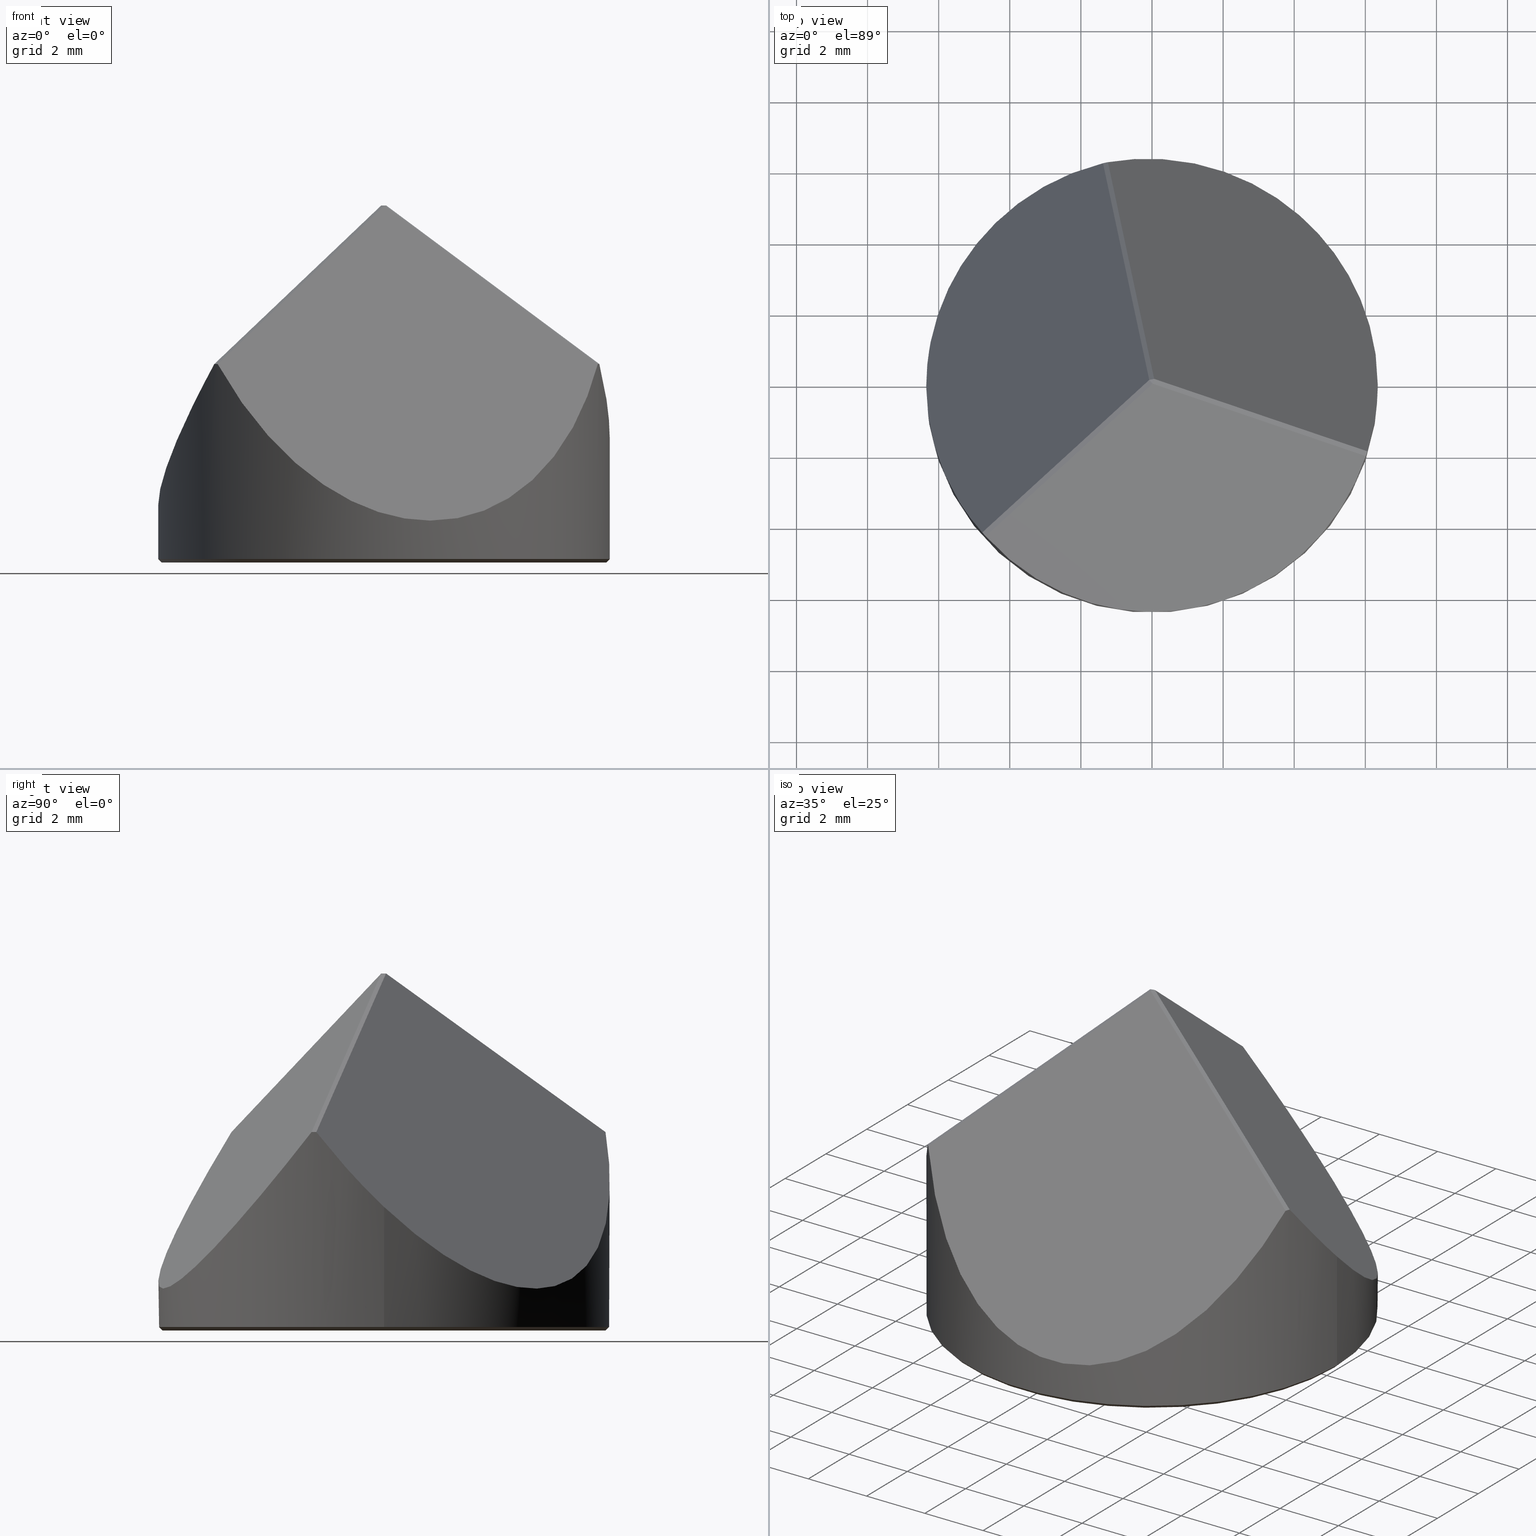
[diagram: canonical four-view strip — front | top / right | iso, engineering-drawing reading convention]
A machine part, canonical four-view strip (front | top / right | iso — engineering-drawing reading convention). The complete STEP part file that produces these views, byte-faithful:
ISO-10303-21;
HEADER;
FILE_DESCRIPTION (( 'STEP AP214' ),
    '1' );
FILE_NAME ('GP26-012-2.STEP',
    '2024-08-13T02:19:45',
    ( 'Windows User' ),
    ( 'P R C' ),
    'SwSTEP 2.0',
    'SolidWorks 2022',
    '' );
FILE_SCHEMA (( 'AUTOMOTIVE_DESIGN' ));
ENDSEC;

DATA;
#1 = LINE ( 'NONE', #305, #44 ) ;
#2 = ORIENTED_EDGE ( 'NONE', *, *, #184, .F. ) ;
#3 = VERTEX_POINT ( 'NONE', #367 ) ;
#4 = EDGE_CURVE ( 'NONE', #5, #20, #69, .T. ) ;
#5 = VERTEX_POINT ( 'NONE', #224 ) ;
#6 = UNCERTAINTY_MEASURE_WITH_UNIT (LENGTH_MEASURE( 1.000000000000000082E-05 ), #221, 'distance_accuracy_value', 'NONE');
#7 = PLANE ( 'NONE',  #146 ) ;
#8 = DIRECTION ( 'NONE',  ( 0.000000000000000000, 0.000000000000000000, 1.000000000000000000 ) ) ;
#9 = CARTESIAN_POINT ( 'NONE',  ( -4.773349735908086977, -4.187795637170729002, 4.913675856748671578 ) ) ;
#10 = CARTESIAN_POINT ( 'NONE',  ( 6.013412275601540458, -2.039944313858767178, 4.913675856748647597 ) ) ;
#11 =( BOUNDED_CURVE ( )  B_SPLINE_CURVE ( 3, ( #268, #129, #150, #10 ),
 .UNSPECIFIED., .F., .F. ) 
 B_SPLINE_CURVE_WITH_KNOTS ( ( 4, 4 ),
 ( 6.272049537170599542, 6.294321077188591573 ),
 .UNSPECIFIED. ) 
 CURVE ( )  GEOMETRIC_REPRESENTATION_ITEM ( )  RATIONAL_B_SPLINE_CURVE ( ( 1.000000000000000000, 0.9999586653025819283, 0.9999586653025819283, 1.000000000000000000 ) ) 
 REPRESENTATION_ITEM ( '' )  );
#12 = DIRECTION ( 'NONE',  ( -0.000000000000000000, -0.000000000000000000, -1.000000000000000000 ) ) ;
#13 = EDGE_CURVE ( 'NONE', #280, #3, #58, .T. ) ;
#14 = VERTEX_POINT ( 'NONE', #283 ) ;
#15 = ORIENTED_EDGE ( 'NONE', *, *, #40, .T. ) ;
#16 = FACE_OUTER_BOUND ( 'NONE', #89, .T. ) ;
#17 = SURFACE_STYLE_USAGE ( .BOTH. , #191 ) ;
#18 = DIRECTION ( 'NONE',  ( -1.000000000000000000, 0.000000000000000000, 0.000000000000000000 ) ) ;
#19 = FILL_AREA_STYLE_COLOUR ( '', #75 ) ;
#20 = VERTEX_POINT ( 'NONE', #174 ) ;
#21 = VECTOR ( 'NONE', #354, 1000.000000000000000 ) ;
#22 = LINE ( 'NONE', #194, #233 ) ;
#23 = EDGE_LOOP ( 'NONE', ( #276, #195, #301, #271 ) ) ;
#24 = EDGE_CURVE ( 'NONE', #14, #304, #269, .T. ) ;
#25 = DIRECTION ( 'NONE',  ( -1.000000000000000000, 0.000000000000000000, 0.000000000000000000 ) ) ;
#26 = ORIENTED_EDGE ( 'NONE', *, *, #112, .F. ) ;
#27 = DIRECTION ( 'NONE',  ( 0.1683570817218968951, -0.7989509119468813925, 0.5773502691896257311 ) ) ;
#28 = ORIENTED_EDGE ( 'NONE', *, *, #13, .F. ) ;
#29 = DIRECTION ( 'NONE',  ( 0.7760903269836917362, -0.2536739462952649071, -0.5773502691896258421 ) ) ;
#30 = ORIENTED_EDGE ( 'NONE', *, *, #131, .F. ) ;
#31 = MECHANICAL_DESIGN_GEOMETRIC_PRESENTATION_REPRESENTATION (  '', ( #365 ), #252 ) ;
#32 = DIRECTION ( 'NONE',  ( -0.1683570817218965621, 0.7989509119468813925, -0.5773502691896256200 ) ) ;
#33 = LINE ( 'NONE', #176, #101 ) ;
#34 = LINE ( 'NONE', #152, #141 ) ;
#35 = VECTOR ( 'NONE', #170, 1000.000000000000000 ) ;
#36 = AXIS2_PLACEMENT_3D ( 'NONE', #55, #27, #84 ) ;
#37 = CARTESIAN_POINT ( 'NONE',  ( 0.000000000000000000, 0.000000000000000000, 0.000000000000000000 ) ) ;
#38 = CARTESIAN_POINT ( 'NONE',  ( -0.9832233233696141550, 4.323026608033536000, 6.269017013437424346 ) ) ;
#39 = LINE ( 'NONE', #267, #74 ) ;
#40 = EDGE_CURVE ( 'NONE', #20, #166, #120, .T. ) ;
#41 = CARTESIAN_POINT ( 'NONE',  ( 6.013412275601540458, -2.039944313858767178, 4.913675856748647597 ) ) ;
#42 = ORIENTED_EDGE ( 'NONE', *, *, #214, .F. ) ;
#43 = AXIS2_PLACEMENT_3D ( 'NONE', #361, #111, #105 ) ;
#44 = VECTOR ( 'NONE', #144, 1000.000000000000000 ) ;
#45 = DIRECTION ( 'NONE',  ( 0.6077332452617950631, 0.5452769656516159857, 0.5773502691896258421 ) ) ;
#46 = FACE_OUTER_BOUND ( 'NONE', #148, .T. ) ;
#47 = PRODUCT_RELATED_PRODUCT_CATEGORY ( 'part', '', ( #190 ) ) ;
#48 = CARTESIAN_POINT ( 'NONE',  ( -4.678904995037518333, -4.293058122994954040, 4.913675856748721316 ) ) ;
#49 = DIRECTION ( 'NONE',  ( 0.5968741507397000712, 0.000000000000000000, 0.8023348728422327047 ) ) ;
#50 = EDGE_LOOP ( 'NONE', ( #73, #145, #137 ) ) ;
#51 = EDGE_CURVE ( 'NONE', #143, #280, #242, .T. ) ;
#52 = CARTESIAN_POINT ( 'NONE',  ( 0.000000000000000000, 0.000000000000000000, -0.5700000000000019496 ) ) ;
#53 = CARTESIAN_POINT ( 'NONE',  ( -6.350000000000001421, 3.103686174823302668, -0.4094046865415499337 ) ) ;
#54 = ADVANCED_FACE ( 'NONE', ( #204 ), #95, .F. ) ;
#55 = CARTESIAN_POINT ( 'NONE',  ( 0.9224499988434377018, -4.377554304598697321, 3.163376020178191528 ) ) ;
#56 = ORIENTED_EDGE ( 'NONE', *, *, #315, .F. ) ;
#57 = CARTESIAN_POINT ( 'NONE',  ( -3.252239202108308636, -3.013009679648218420, 6.269017013437423458 ) ) ;
#58 = LINE ( 'NONE', #229, #35 ) ;
#59 = ORIENTED_EDGE ( 'NONE', *, *, #121, .F. ) ;
#60 = APPLICATION_CONTEXT ( 'automotive_design' ) ;
#61 = FACE_OUTER_BOUND ( 'NONE', #360, .T. ) ;
#62 = CARTESIAN_POINT ( 'NONE',  ( 6.349999999999999645, -0.6476245182123647748, 3.417607508736823618 ) ) ;
#63 = DIRECTION ( 'NONE',  ( 1.000000000000000000, 0.000000000000000000, 0.000000000000000000 ) ) ;
#64 = CARTESIAN_POINT ( 'NONE',  ( 3.329848234806675578, 2.987642285018690114, 3.163376020178194636 ) ) ;
#65 = DIRECTION ( 'NONE',  ( -1.000000000000000000, 0.000000000000000000, 0.000000000000000000 ) ) ;
#66 = DIRECTION ( 'NONE',  ( 0.000000000000000000, 0.000000000000000000, -1.000000000000000000 ) ) ;
#67 = DIRECTION ( 'NONE',  ( 1.000000000000000000, 0.000000000000000000, 0.000000000000000000 ) ) ;
#68 = DIRECTION ( 'NONE',  ( 1.000000000000000000, 0.000000000000000000, 0.000000000000000000 ) ) ;
#69 =( BOUNDED_CURVE ( )  B_SPLINE_CURVE ( 3, ( #311, #117, #62, #198 ),
 .UNSPECIFIED., .F., .F. ) 
 B_SPLINE_CURVE_WITH_KNOTS ( ( 4, 4 ),
 ( 5.247123525991987059, 5.551902276905597233 ),
 .UNSPECIFIED. ) 
 CURVE ( )  GEOMETRIC_REPRESENTATION_ITEM ( )  RATIONAL_B_SPLINE_CURVE ( ( 1.000000000000000000, 0.9922741279781082113, 0.9922741279781082113, 1.000000000000000000 ) ) 
 REPRESENTATION_ITEM ( '' )  );
#70 = ADVANCED_FACE ( 'NONE', ( #100 ), #295, .T. ) ;
#71 = CARTESIAN_POINT ( 'NONE',  ( -1.020309708082639988, -8.280476711917241772, -1.671065411290767244 ) ) ;
#72 = SURFACE_STYLE_FILL_AREA ( #80 ) ;
#73 = ORIENTED_EDGE ( 'NONE', *, *, #196, .T. ) ;
#74 = VECTOR ( 'NONE', #206, 1000.000000000000114 ) ;
#75 = COLOUR_RGB ( '',1.000000000000000000, 1.000000000000000000, 1.000000000000000000 ) ;
#76 = PRODUCT_DEFINITION_CONTEXT ( 'detailed design', #60, 'design' ) ;
#77 = ORIENTED_EDGE ( 'NONE', *, *, #159, .F. ) ;
#78 = LINE ( 'NONE', #155, #326 ) ;
#79 = PRODUCT_DEFINITION_SHAPE ( 'NONE', 'NONE',  #319 ) ;
#80 = FILL_AREA_STYLE ('',( #359 ) ) ;
#81 =( NAMED_UNIT ( * ) PLANE_ANGLE_UNIT ( ) SI_UNIT ( $, .RADIAN. ) );
#82 = ORIENTED_EDGE ( 'NONE', *, *, #347, .F. ) ;
#83 = EDGE_CURVE ( 'NONE', #3, #253, #203, .T. ) ;
#84 = DIRECTION ( 'NONE',  ( 0.000000000000000000, -0.5857106597838060980, -0.8105202175242876006 ) ) ;
#85 = ORIENTED_EDGE ( 'NONE', *, *, #4, .F. ) ;
#86 = SURFACE_STYLE_USAGE ( .BOTH. , #339 ) ;
#87 = VERTEX_POINT ( 'NONE', #236 ) ;
#88 = CARTESIAN_POINT ( 'NONE',  ( -0.07760903269836687268, 0.02536739462952296645, 9.374658006696655832 ) ) ;
#89 = EDGE_LOOP ( 'NONE', ( #77, #82, #30, #325 ) ) ;
#90 = DIRECTION ( 'NONE',  ( -0.6077332452617949521, -0.5452769656516159857, -0.5773502691896258421 ) ) ;
#91 = VERTEX_POINT ( 'NONE', #316 ) ;
#92 = ORIENTED_EDGE ( 'NONE', *, *, #184, .T. ) ;
#93 = UNCERTAINTY_MEASURE_WITH_UNIT (LENGTH_MEASURE( 1.000000000000000082E-05 ), #218, 'distance_accuracy_value', 'NONE');
#94 = CONICAL_SURFACE ( 'NONE', #106, 6.250000000000000888, 0.7853981633974526089 ) ;
#95 = PLANE ( 'NONE',  #135 ) ;
#96 = VECTOR ( 'NONE', #45, 999.9999999999998863 ) ;
#97 = ADVANCED_FACE ( 'NONE', ( #208 ), #340, .T. ) ;
#98 = CARTESIAN_POINT ( 'NONE',  ( 0.000000000000000000, 0.000000000000000000, -0.6699999999999995959 ) ) ;
#99 = CARTESIAN_POINT ( 'NONE',  ( -6.349999999999999645, 0.000000000000000000, 0.9542810377841138836 ) ) ;
#100 = FACE_OUTER_BOUND ( 'NONE', #335, .T. ) ;
#101 = VECTOR ( 'NONE', #32, 1000.000000000000000 ) ;
#102 = VECTOR ( 'NONE', #284, 1000.000000000000114 ) ;
#103 = DIRECTION ( 'NONE',  ( 0.1683570817218965066, -0.7989509119468813925, 0.5773502691896256200 ) ) ;
#104 = CYLINDRICAL_SURFACE ( 'NONE', #265, 6.349999999999999645 ) ;
#105 = DIRECTION ( 'NONE',  ( 0.7760903269836917362, -0.2536739462952650181, -0.5773502691896257311 ) ) ;
#106 = AXIS2_PLACEMENT_3D ( 'NONE', #352, #151, #68 ) ;
#107 = VECTOR ( 'NONE', #300, 1000.000000000000000 ) ;
#108 = ADVANCED_BREP_SHAPE_REPRESENTATION ( 'GP26-012-2', ( #197, #281 ), #293 ) ;
#109 = PRODUCT_DEFINITION_FORMATION_WITH_SPECIFIED_SOURCE ( '�κ�', '', #190, .NOT_KNOWN. ) ;
#110 = ORIENTED_EDGE ( 'NONE', *, *, #327, .F. ) ;
#111 = DIRECTION ( 'NONE',  ( -0.5487787330234554783, 0.1793745676357279273, -0.8164965809277260345 ) ) ;
#112 = EDGE_CURVE ( 'NONE', #216, #333, #205, .T. ) ;
#113 = LINE ( 'NONE', #279, #102 ) ;
#114 = CIRCLE ( 'NONE', #181, 6.349999999999999645 ) ;
#115 = ORIENTED_EDGE ( 'NONE', *, *, #138, .T. ) ;
#116 = FACE_OUTER_BOUND ( 'NONE', #50, .T. ) ;
#117 = CARTESIAN_POINT ( 'NONE',  ( 6.251690436881996327, -1.287743840205808121, 4.125649633596847110 ) ) ;
#118 = ORIENTED_EDGE ( 'NONE', *, *, #159, .T. ) ;
#119 = PLANE ( 'NONE',  #227 ) ;
#120 =( BOUNDED_CURVE ( )  B_SPLINE_CURVE ( 3, ( #177, #127, #128, #351 ),
 .UNSPECIFIED., .F., .T. ) 
 B_SPLINE_CURVE_WITH_KNOTS ( ( 4, 4 ),
 ( 5.551902276905597233, 7.319247088367185405 ),
 .UNSPECIFIED. ) 
 CURVE ( )  GEOMETRIC_REPRESENTATION_ITEM ( )  RATIONAL_B_SPLINE_CURVE ( ( 1.000000000000000000, 0.7562109254666702363, 0.7562109254666702363, 1.000000000000000000 ) ) 
 REPRESENTATION_ITEM ( '' )  );
#121 = EDGE_CURVE ( 'NONE', #309, #14, #33, .T. ) ;
#122 = CARTESIAN_POINT ( 'NONE',  ( -6.349999999999999645, 0.000000000000000000, 0.9542810377841138836 ) ) ;
#123 = AXIS2_PLACEMENT_3D ( 'NONE', #154, #202, #65 ) ;
#124 = CARTESIAN_POINT ( 'NONE',  ( 0.000000000000000000, 0.000000000000000000, -0.6699999999999999289 ) ) ;
#125 = MECHANICAL_DESIGN_GEOMETRIC_PRESENTATION_REPRESENTATION (  '', ( #264 ), #210 ) ;
#126 = SHAPE_DEFINITION_REPRESENTATION ( #79, #108 ) ;
#127 = CARTESIAN_POINT ( 'NONE',  ( 6.349999999999997868, 4.327731766911852240, -1.281354842135801420 ) ) ;
#128 = CARTESIAN_POINT ( 'NONE',  ( 3.004345022847742186, 7.072882950397804791, -0.3522861678321642098 ) ) ;
#129 = CARTESIAN_POINT ( 'NONE',  ( 6.043203299936917183, -1.950491292360709839, 4.913304656743204823 ) ) ;
#130 = EDGE_LOOP ( 'NONE', ( #330, #92, #248, #42, #362, #341 ) ) ;
#131 = EDGE_CURVE ( 'NONE', #87, #91, #39, .T. ) ;
#132 = CARTESIAN_POINT ( 'NONE',  ( -3.346683942978864401, -2.907747193824007592, 6.269017013437424346 ) ) ;
#133 = EDGE_LOOP ( 'NONE', ( #244, #222, #157, #28 ) ) ;
#134 = LINE ( 'NONE', #136, #21 ) ;
#135 = AXIS2_PLACEMENT_3D ( 'NONE', #38, #317, #289 ) ;
#136 = CARTESIAN_POINT ( 'NONE',  ( 6.349999999999999645, 7.776507174585692163E-16, 5.000000000000000000 ) ) ;
#137 = ORIENTED_EDGE ( 'NONE', *, *, #251, .T. ) ;
#138 = EDGE_CURVE ( 'NONE', #280, #143, #299, .T. ) ;
#139 = LINE ( 'NONE', #247, #168 ) ;
#140 = ORIENTED_EDGE ( 'NONE', *, *, #344, .F. ) ;
#141 = VECTOR ( 'NONE', #298, 1000.000000000000000 ) ;
#142 =( LENGTH_UNIT ( ) NAMED_UNIT ( * ) SI_UNIT ( .MILLI., .METRE. ) );
#143 = VERTEX_POINT ( 'NONE', #234 ) ;
#144 = DIRECTION ( 'NONE',  ( -0.6678251671697826852, 0.7443181753085515995, 1.225326322964467107E-14 ) ) ;
#145 = ORIENTED_EDGE ( 'NONE', *, *, #315, .T. ) ;
#146 = AXIS2_PLACEMENT_3D ( 'NONE', #64, #292, #350 ) ;
#147 = CARTESIAN_POINT ( 'NONE',  ( -0.07760903269836687268, 0.02536739462952296645, 9.374658006696655832 ) ) ;
#148 = EDGE_LOOP ( 'NONE', ( #163, #246, #26, #56 ) ) ;
#149 = ADVANCED_FACE ( 'NONE', ( #178 ), #94, .T. ) ;
#150 = CARTESIAN_POINT ( 'NONE',  ( 6.028556822411204941, -1.995300740465629552, 4.913304656743205712 ) ) ;
#151 = DIRECTION ( 'NONE',  ( 0.000000000000000000, 0.000000000000000000, 1.000000000000000000 ) ) ;
#152 = CARTESIAN_POINT ( 'NONE',  ( -6.250000000000000888, 7.654042494670958593E-16, -0.6699999999999995959 ) ) ;
#153 = AXIS2_PLACEMENT_3D ( 'NONE', #219, #297, #49 ) ;
#154 = CARTESIAN_POINT ( 'NONE',  ( 0.000000000000000000, 0.000000000000000000, -0.6699999999999999289 ) ) ;
#155 = CARTESIAN_POINT ( 'NONE',  ( 4.191524909123934606, -1.444439716145166752, 6.269017013437423458 ) ) ;
#156 = CLOSED_SHELL ( 'NONE', ( #149, #263, #277, #223, #323, #179, #70, #97, #54, #212, #336, #302 ) ) ;
#157 = ORIENTED_EDGE ( 'NONE', *, *, #83, .F. ) ;
#158 = LINE ( 'NONE', #132, #96 ) ;
#159 = EDGE_CURVE ( 'NONE', #5, #306, #11, .T. ) ;
#160 = DIRECTION ( 'NONE',  ( -0.000000000000000000, -0.000000000000000000, -1.000000000000000000 ) ) ;
#161 = PRESENTATION_STYLE_ASSIGNMENT (( #17 ) ) ;
#162 = CARTESIAN_POINT ( 'NONE',  ( 0.000000000000000000, 0.000000000000000000, 5.000000000000000000 ) ) ;
#163 = ORIENTED_EDGE ( 'NONE', *, *, #356, .T. ) ;
#164 = EDGE_LOOP ( 'NONE', ( #346, #307, #358, #15 ) ) ;
#165 = CARTESIAN_POINT ( 'NONE',  ( -1.332426640923738637, 6.208813224159674071, 4.913304656743204823 ) ) ;
#166 = VERTEX_POINT ( 'NONE', #237 ) ;
#167 = COLOUR_RGB ( '',1.000000000000000000, 1.000000000000000000, 1.000000000000000000 ) ;
#168 = VECTOR ( 'NONE', #103, 1000.000000000000000 ) ;
#169 = CARTESIAN_POINT ( 'NONE',  ( -4.773349735908086977, -4.187795637170729002, 4.913675856748671578 ) ) ;
#170 = DIRECTION ( 'NONE',  ( 0.7071067811865505703, 0.000000000000000000, 0.7071067811865444641 ) ) ;
#171 = CARTESIAN_POINT ( 'NONE',  ( 6.013412275601540458, -2.039944313858767178, 4.913675856748647597 ) ) ;
#172 = EDGE_LOOP ( 'NONE', ( #288, #59, #140, #366 ) ) ;
#173 = PLANE ( 'NONE',  #314 ) ;
#174 = CARTESIAN_POINT ( 'NONE',  ( 6.349999999999999645, 7.776507174585692163E-16, 2.805960210696949897 ) ) ;
#175 = EDGE_CURVE ( 'NONE', #304, #333, #182, .T. ) ;
#176 = CARTESIAN_POINT ( 'NONE',  ( -0.9832233233696141550, 4.323026608033536888, 6.269017013437424346 ) ) ;
#177 = CARTESIAN_POINT ( 'NONE',  ( 6.349999999999999645, 7.776507174585692163E-16, 2.805960210696949897 ) ) ;
#178 = FACE_OUTER_BOUND ( 'NONE', #133, .T. ) ;
#179 = ADVANCED_FACE ( 'NONE', ( #262 ), #7, .T. ) ;
#180 = CARTESIAN_POINT ( 'NONE',  ( 0.000000000000000000, 0.000000000000000000, -0.6699999999999999289 ) ) ;
#181 = AXIS2_PLACEMENT_3D ( 'NONE', #52, #310, #25 ) ;
#182 =( BOUNDED_CURVE ( )  B_SPLINE_CURVE ( 3, ( #122, #232, #348, #266 ),
 .UNSPECIFIED., .F., .F. ) 
 B_SPLINE_CURVE_WITH_KNOTS ( ( 4, 4 ),
 ( 0.3159145209226036366, 1.036061781187596509 ),
 .UNSPECIFIED. ) 
 CURVE ( )  GEOMETRIC_REPRESENTATION_ITEM ( )  RATIONAL_B_SPLINE_CURVE ( ( 1.000000000000000000, 0.9572472554283688595, 0.9572472554283688595, 1.000000000000000000 ) ) 
 REPRESENTATION_ITEM ( '' )  );
#183 = EDGE_CURVE ( 'NONE', #143, #253, #34, .T. ) ;
#184 = EDGE_CURVE ( 'NONE', #20, #3, #134, .T. ) ;
#185 = LINE ( 'NONE', #213, #107 ) ;
#186 = ORIENTED_EDGE ( 'NONE', *, *, #13, .T. ) ;
#187 = CARTESIAN_POINT ( 'NONE',  ( 6.250000000000000888, 0.000000000000000000, -0.6699999999999999289 ) ) ;
#188 = ORIENTED_EDGE ( 'NONE', *, *, #51, .T. ) ;
#189 = FACE_OUTER_BOUND ( 'NONE', #23, .T. ) ;
#190 = PRODUCT ( 'GP26-012-2', 'GP26-012-2', '', ( #260 ) ) ;
#191 = SURFACE_SIDE_STYLE ('',( #72 ) ) ;
#192 = ORIENTED_EDGE ( 'NONE', *, *, #327, .T. ) ;
#193 = ORIENTED_EDGE ( 'NONE', *, *, #112, .T. ) ;
#194 = CARTESIAN_POINT ( 'NONE',  ( 4.235462525477924345, -1.310016928385321133, 6.269017013437423458 ) ) ;
#195 = ORIENTED_EDGE ( 'NONE', *, *, #175, .T. ) ;
#196 = EDGE_CURVE ( 'NONE', #306, #87, #78, .T. ) ;
#197 = MANIFOLD_SOLID_BREP ( '����2', #156 ) ;
#198 = CARTESIAN_POINT ( 'NONE',  ( 6.349999999999999645, 7.776507174585692163E-16, 2.805960210696949897 ) ) ;
#199 = PRESENTATION_LAYER_ASSIGNMENT (  '', '', ( #264 ) ) ;
#200 = EDGE_LOOP ( 'NONE', ( #2, #85, #118, #241, #193, #278, #250, #192 ) ) ;
#201 = CARTESIAN_POINT ( 'NONE',  ( -1.286297281772447842, 6.218533726598915123, 4.913304656743204823 ) ) ;
#202 = DIRECTION ( 'NONE',  ( 0.000000000000000000, 0.000000000000000000, -1.000000000000000000 ) ) ;
#203 = CIRCLE ( 'NONE', #320, 6.349999999999999645 ) ;
#204 = FACE_OUTER_BOUND ( 'NONE', #172, .T. ) ;
#205 =( BOUNDED_CURVE ( )  B_SPLINE_CURVE ( 3, ( #353, #313, #291, #9 ),
 .UNSPECIFIED., .F., .F. ) 
 B_SPLINE_CURVE_WITH_KNOTS ( ( 4, 4 ),
 ( 6.272049537170597766, 6.294321077188597791 ),
 .UNSPECIFIED. ) 
 CURVE ( )  GEOMETRIC_REPRESENTATION_ITEM ( )  RATIONAL_B_SPLINE_CURVE ( ( 1.000000000000000000, 0.9999586653025819283, 0.9999586653025819283, 1.000000000000000000 ) ) 
 REPRESENTATION_ITEM ( '' )  );
#206 = DIRECTION ( 'NONE',  ( 0.3106858647307806920, 0.9505126477099012927, 6.307969425358070962E-29 ) ) ;
#207 = APPLICATION_PROTOCOL_DEFINITION ( 'draft international standard', 'automotive_design', 1998, #60 ) ;
#208 = FACE_OUTER_BOUND ( 'NONE', #338, .T. ) ;
#209 = AXIS2_PLACEMENT_3D ( 'NONE', #98, #261, #67 ) ;
#210 =( GEOMETRIC_REPRESENTATION_CONTEXT ( 3 ) GLOBAL_UNCERTAINTY_ASSIGNED_CONTEXT ( ( #93 ) ) GLOBAL_UNIT_ASSIGNED_CONTEXT ( ( #218, #357, #331 ) ) REPRESENTATION_CONTEXT ( 'NONE', 'WORKASPACE' ) );
#211 = CARTESIAN_POINT ( 'NONE',  ( 0.000000000000000000, 0.000000000000000000, -0.5700000000000019496 ) ) ;
#212 = ADVANCED_FACE ( 'NONE', ( #16 ), #215, .F. ) ;
#213 = CARTESIAN_POINT ( 'NONE',  ( -6.349999999999999645, 0.000000000000000000, 5.000000000000000000 ) ) ;
#214 = EDGE_CURVE ( 'NONE', #304, #253, #185, .T. ) ;
#215 = PLANE ( 'NONE',  #43 ) ;
#216 = VERTEX_POINT ( 'NONE', #48 ) ;
#217 = VECTOR ( 'NONE', #287, 1000.000000000000114 ) ;
#218 =( LENGTH_UNIT ( ) NAMED_UNIT ( * ) SI_UNIT ( .MILLI., .METRE. ) );
#219 = CARTESIAN_POINT ( 'NONE',  ( -4.252298233650112280, 1.389912019580005431, 3.163376020178191528 ) ) ;
#220 = DIRECTION ( 'NONE',  ( 1.346302109697166455E-14, -4.400541498820925930E-15, 1.000000000000000000 ) ) ;
#221 =( LENGTH_UNIT ( ) NAMED_UNIT ( * ) SI_UNIT ( .MILLI., .METRE. ) );
#222 = ORIENTED_EDGE ( 'NONE', *, *, #183, .T. ) ;
#223 = ADVANCED_FACE ( 'NONE', ( #189 ), #322, .T. ) ;
#224 = CARTESIAN_POINT ( 'NONE',  ( 6.057349891955519539, -1.905521526098945984, 4.913675856748688453 ) ) ;
#225 = PLANE ( 'NONE',  #36 ) ;
#226 = ORIENTED_EDGE ( 'NONE', *, *, #356, .F. ) ;
#227 = AXIS2_PLACEMENT_3D ( 'NONE', #57, #228, #90 ) ;
#228 = DIRECTION ( 'NONE',  ( 0.4297322988771166696, 0.3855690400370883619, -0.8164965809277260345 ) ) ;
#229 = CARTESIAN_POINT ( 'NONE',  ( 6.250000000000000888, 0.000000000000000000, -0.6699999999999995959 ) ) ;
#230 =( NAMED_UNIT ( * ) SI_UNIT ( $, .STERADIAN. ) SOLID_ANGLE_UNIT ( ) );
#231 = CARTESIAN_POINT ( 'NONE',  ( -4.408121426120155562, 5.524837858649764399, 1.137126289191131123 ) ) ;
#232 = CARTESIAN_POINT ( 'NONE',  ( -6.349999999999999645, -1.558203443857914650, 1.638918488961053077 ) ) ;
#233 = VECTOR ( 'NONE', #29, 1000.000000000000114 ) ;
#234 = CARTESIAN_POINT ( 'NONE',  ( -6.250000000000000888, 7.715274834628326364E-16, -0.6699999999999999289 ) ) ;
#235 = DIRECTION ( 'NONE',  ( -1.000000000000000000, 0.000000000000000000, -0.000000000000000000 ) ) ;
#236 = CARTESIAN_POINT ( 'NONE',  ( 0.01683570817218900048, -0.07989509119468835019, 9.374658006696654056 ) ) ;
#237 = CARTESIAN_POINT ( 'NONE',  ( -1.240062539693432386, 6.227739951029511722, 4.913675856748684900 ) ) ;
#238 = EDGE_CURVE ( 'NONE', #333, #309, #158, .T. ) ;
#239 = FACE_OUTER_BOUND ( 'NONE', #200, .T. ) ;
#240 = CYLINDRICAL_SURFACE ( 'NONE', #328, 6.349999999999999645 ) ;
#241 = ORIENTED_EDGE ( 'NONE', *, *, #251, .F. ) ;
#242 = CIRCLE ( 'NONE', #258, 6.250000000000000888 ) ;
#243 = DIRECTION ( 'NONE',  ( -0.7760903269836918472, 0.2536739462952650181, 0.5773502691896257311 ) ) ;
#244 = ORIENTED_EDGE ( 'NONE', *, *, #51, .F. ) ;
#245 = PRESENTATION_LAYER_ASSIGNMENT (  '', '', ( #365 ) ) ;
#246 = ORIENTED_EDGE ( 'NONE', *, *, #238, .F. ) ;
#247 = CARTESIAN_POINT ( 'NONE',  ( -0.8448409661450687613, 4.352186909969169903, 6.269017013437423458 ) ) ;
#248 = ORIENTED_EDGE ( 'NONE', *, *, #83, .T. ) ;
#249 = FILL_AREA_STYLE ('',( #19 ) ) ;
#250 = ORIENTED_EDGE ( 'NONE', *, *, #214, .T. ) ;
#251 = EDGE_CURVE ( 'NONE', #216, #306, #286, .T. ) ;
#252 =( GEOMETRIC_REPRESENTATION_CONTEXT ( 3 ) GLOBAL_UNCERTAINTY_ASSIGNED_CONTEXT ( ( #6 ) ) GLOBAL_UNIT_ASSIGNED_CONTEXT ( ( #221, #312, #230 ) ) REPRESENTATION_CONTEXT ( 'NONE', 'WORKASPACE' ) );
#253 = VERTEX_POINT ( 'NONE', #272 ) ;
#254 = CARTESIAN_POINT ( 'NONE',  ( -1.378444896917990548, 6.198579649093875155, 4.913675856748713322 ) ) ;
#255 = CARTESIAN_POINT ( 'NONE',  ( -0.07760903269836713636, 0.02536739462952273053, 9.374658006696655832 ) ) ;
#256 = ORIENTED_EDGE ( 'NONE', *, *, #131, .T. ) ;
#257 =( BOUNDED_CURVE ( )  B_SPLINE_CURVE ( 3, ( #274, #165, #201, #342 ),
 .UNSPECIFIED., .F., .F. ) 
 B_SPLINE_CURVE_WITH_KNOTS ( ( 4, 4 ),
 ( 6.272049537170584443, 6.294321077188583580 ),
 .UNSPECIFIED. ) 
 CURVE ( )  GEOMETRIC_REPRESENTATION_ITEM ( )  RATIONAL_B_SPLINE_CURVE ( ( 1.000000000000000000, 0.9999586653025819283, 0.9999586653025819283, 1.000000000000000000 ) ) 
 REPRESENTATION_ITEM ( '' )  );
#258 = AXIS2_PLACEMENT_3D ( 'NONE', #124, #318, #294 ) ;
#259 = ORIENTED_EDGE ( 'NONE', *, *, #344, .T. ) ;
#260 = PRODUCT_CONTEXT ( 'NONE', #355, 'mechanical' ) ;
#261 = DIRECTION ( 'NONE',  ( 0.000000000000000000, 0.000000000000000000, 1.000000000000000000 ) ) ;
#262 = FACE_OUTER_BOUND ( 'NONE', #164, .T. ) ;
#263 = ADVANCED_FACE ( 'NONE', ( #270 ), #240, .T. ) ;
#264 = STYLED_ITEM ( 'NONE', ( #161 ), #197 ) ;
#265 = AXIS2_PLACEMENT_3D ( 'NONE', #324, #160, #329 ) ;
#266 = CARTESIAN_POINT ( 'NONE',  ( -4.773349735908086977, -4.187795637170729002, 4.913675856748671578 ) ) ;
#267 = CARTESIAN_POINT ( 'NONE',  ( 0.03880451634918339471, -0.01268369731476422235, 9.374658006696654056 ) ) ;
#268 = CARTESIAN_POINT ( 'NONE',  ( 6.057349891955519539, -1.905521526098945984, 4.913675856748688453 ) ) ;
#269 =( BOUNDED_CURVE ( )  B_SPLINE_CURVE ( 3, ( #254, #231, #53, #99 ),
 .UNSPECIFIED., .F., .T. ) 
 B_SPLINE_CURVE_WITH_KNOTS ( ( 4, 4 ),
 ( 5.247123525991984394, 6.599099828102190202 ),
 .UNSPECIFIED. ) 
 CURVE ( )  GEOMETRIC_REPRESENTATION_ITEM ( )  RATIONAL_B_SPLINE_CURVE ( ( 1.000000000000000000, 0.8533927180882578956, 0.8533927180882578956, 1.000000000000000000 ) ) 
 REPRESENTATION_ITEM ( '' )  );
#270 = FACE_OUTER_BOUND ( 'NONE', #130, .T. ) ;
#271 = ORIENTED_EDGE ( 'NONE', *, *, #121, .T. ) ;
#272 = CARTESIAN_POINT ( 'NONE',  ( -6.349999999999999645, 0.000000000000000000, -0.5700000000000019496 ) ) ;
#273 = EDGE_CURVE ( 'NONE', #166, #91, #139, .T. ) ;
#274 = CARTESIAN_POINT ( 'NONE',  ( -1.378444896917990548, 6.198579649093875155, 4.913675856748713322 ) ) ;
#275 = CARTESIAN_POINT ( 'NONE',  ( -4.678904995037518333, -4.293058122994954040, 4.913675856748721316 ) ) ;
#276 = ORIENTED_EDGE ( 'NONE', *, *, #24, .T. ) ;
#277 = ADVANCED_FACE ( 'NONE', ( #239 ), #104, .T. ) ;
#278 = ORIENTED_EDGE ( 'NONE', *, *, #175, .F. ) ;
#279 = CARTESIAN_POINT ( 'NONE',  ( -3.252239202108307747, -3.013009679648218864, 6.269017013437423458 ) ) ;
#280 = VERTEX_POINT ( 'NONE', #187 ) ;
#281 = AXIS2_PLACEMENT_3D ( 'NONE', #37, #345, #63 ) ;
#282 = CARTESIAN_POINT ( 'NONE',  ( -6.349999999999999645, 0.000000000000000000, 0.9542810377841138836 ) ) ;
#283 = CARTESIAN_POINT ( 'NONE',  ( -1.378444896917990548, 6.198579649093875155, 4.913675856748713322 ) ) ;
#284 = DIRECTION ( 'NONE',  ( -0.6077332452617949521, -0.5452769656516160968, -0.5773502691896258421 ) ) ;
#285 = ORIENTED_EDGE ( 'NONE', *, *, #138, .F. ) ;
#286 =( BOUNDED_CURVE ( )  B_SPLINE_CURVE ( 3, ( #275, #71, #296, #41 ),
 .UNSPECIFIED., .F., .T. ) 
 B_SPLINE_CURVE_WITH_KNOTS ( ( 4, 4 ),
 ( 5.247123525991982618, 7.319247088367180964 ),
 .UNSPECIFIED. ) 
 CURVE ( )  GEOMETRIC_REPRESENTATION_ITEM ( )  RATIONAL_B_SPLINE_CURVE ( ( 1.000000000000000000, 0.6730751062543962604, 0.6730751062543962604, 1.000000000000000000 ) ) 
 REPRESENTATION_ITEM ( '' )  );
#287 = DIRECTION ( 'NONE',  ( -0.9785110319005726476, -0.2061944724013627384, 1.227288938537817582E-14 ) ) ;
#288 = ORIENTED_EDGE ( 'NONE', *, *, #290, .F. ) ;
#289 = DIRECTION ( 'NONE',  ( -0.1683570817218965066, 0.7989509119468815035, -0.5773502691896255090 ) ) ;
#290 = EDGE_CURVE ( 'NONE', #14, #166, #257, .T. ) ;
#291 = CARTESIAN_POINT ( 'NONE',  ( -4.742259540638737114, -4.223232986133281130, 4.913304656743203935 ) ) ;
#292 = DIRECTION ( 'NONE',  ( 0.6077332452617950631, 0.5452769656516157637, 0.5773502691896260641 ) ) ;
#293 =( GEOMETRIC_REPRESENTATION_CONTEXT ( 3 ) GLOBAL_UNCERTAINTY_ASSIGNED_CONTEXT ( ( #349 ) ) GLOBAL_UNIT_ASSIGNED_CONTEXT ( ( #142, #81, #303 ) ) REPRESENTATION_CONTEXT ( 'NONE', 'WORKASPACE' ) );
#294 = DIRECTION ( 'NONE',  ( -1.000000000000000000, 0.000000000000000000, 0.000000000000000000 ) ) ;
#295 = PLANE ( 'NONE',  #363 ) ;
#296 = CARTESIAN_POINT ( 'NONE',  ( 4.274947424087382153, -7.164645908787126594, -1.671065411290801217 ) ) ;
#297 = DIRECTION ( 'NONE',  ( -0.7760903269836918472, 0.2536739462952652402, 0.5773502691896257311 ) ) ;
#298 = DIRECTION ( 'NONE',  ( -0.7071067811865505703, 8.659560562354971069E-17, 0.7071067811865444641 ) ) ;
#299 = CIRCLE ( 'NONE', #123, 6.250000000000000888 ) ;
#300 = DIRECTION ( 'NONE',  ( -0.000000000000000000, -0.000000000000000000, -1.000000000000000000 ) ) ;
#301 = ORIENTED_EDGE ( 'NONE', *, *, #238, .T. ) ;
#302 = ADVANCED_FACE ( 'NONE', ( #46 ), #119, .F. ) ;
#303 =( NAMED_UNIT ( * ) SI_UNIT ( $, .STERADIAN. ) SOLID_ANGLE_UNIT ( ) );
#304 = VERTEX_POINT ( 'NONE', #282 ) ;
#305 = CARTESIAN_POINT ( 'NONE',  ( -0.07760903269836687268, 0.02536739462952296645, 9.374658006696655832 ) ) ;
#306 = VERTEX_POINT ( 'NONE', #171 ) ;
#307 = ORIENTED_EDGE ( 'NONE', *, *, #347, .T. ) ;
#308 = APPLICATION_PROTOCOL_DEFINITION ( 'draft international standard', 'automotive_design', 1998, #355 ) ;
#309 = VERTEX_POINT ( 'NONE', #255 ) ;
#310 = DIRECTION ( 'NONE',  ( 0.000000000000000000, 0.000000000000000000, 1.000000000000000000 ) ) ;
#311 = CARTESIAN_POINT ( 'NONE',  ( 6.057349891955519539, -1.905521526098945984, 4.913675856748688453 ) ) ;
#312 =( NAMED_UNIT ( * ) PLANE_ANGLE_UNIT ( ) SI_UNIT ( $, .RADIAN. ) );
#313 = CARTESIAN_POINT ( 'NONE',  ( -4.710776659013161449, -4.258321931798978000, 4.913304656743203935 ) ) ;
#314 = AXIS2_PLACEMENT_3D ( 'NONE', #147, #220, #334 ) ;
#315 = EDGE_CURVE ( 'NONE', #87, #216, #113, .T. ) ;
#316 = CARTESIAN_POINT ( 'NONE',  ( 0.06077332452617782710, 0.05452769656515735197, 9.374658006696654056 ) ) ;
#317 = DIRECTION ( 'NONE',  ( 0.1190464341463297882, -0.5649436076728160394, -0.8164965809277262565 ) ) ;
#318 = DIRECTION ( 'NONE',  ( 0.000000000000000000, 0.000000000000000000, -1.000000000000000000 ) ) ;
#319 = PRODUCT_DEFINITION ( 'δ֪', '', #109, #76 ) ;
#320 = AXIS2_PLACEMENT_3D ( 'NONE', #211, #8, #321 ) ;
#321 = DIRECTION ( 'NONE',  ( -1.000000000000000000, 0.000000000000000000, 0.000000000000000000 ) ) ;
#322 = PLANE ( 'NONE',  #153 ) ;
#323 = ADVANCED_FACE ( 'NONE', ( #116 ), #225, .T. ) ;
#324 = CARTESIAN_POINT ( 'NONE',  ( 0.000000000000000000, 0.000000000000000000, 5.000000000000000000 ) ) ;
#325 = ORIENTED_EDGE ( 'NONE', *, *, #196, .F. ) ;
#326 = VECTOR ( 'NONE', #243, 999.9999999999998863 ) ;
#327 = EDGE_CURVE ( 'NONE', #253, #3, #114, .T. ) ;
#328 = AXIS2_PLACEMENT_3D ( 'NONE', #162, #12, #18 ) ;
#329 = DIRECTION ( 'NONE',  ( -1.000000000000000000, 0.000000000000000000, 0.000000000000000000 ) ) ;
#330 = ORIENTED_EDGE ( 'NONE', *, *, #40, .F. ) ;
#331 =( NAMED_UNIT ( * ) SI_UNIT ( $, .STERADIAN. ) SOLID_ANGLE_UNIT ( ) );
#332 = LINE ( 'NONE', #88, #217 ) ;
#333 = VERTEX_POINT ( 'NONE', #169 ) ;
#334 = DIRECTION ( 'NONE',  ( 1.000000000000000000, 0.000000000000000000, -1.346302109697166455E-14 ) ) ;
#335 = EDGE_LOOP ( 'NONE', ( #115, #188 ) ) ;
#336 = ADVANCED_FACE ( 'NONE', ( #61 ), #173, .T. ) ;
#337 = SURFACE_STYLE_FILL_AREA ( #249 ) ;
#338 = EDGE_LOOP ( 'NONE', ( #343, #285, #186, #110 ) ) ;
#339 = SURFACE_SIDE_STYLE ('',( #337 ) ) ;
#340 = CONICAL_SURFACE ( 'NONE', #209, 6.250000000000000888, 0.7853981633974526089 ) ;
#341 = ORIENTED_EDGE ( 'NONE', *, *, #290, .T. ) ;
#342 = CARTESIAN_POINT ( 'NONE',  ( -1.240062539693432386, 6.227739951029511722, 4.913675856748684900 ) ) ;
#343 = ORIENTED_EDGE ( 'NONE', *, *, #183, .F. ) ;
#344 = EDGE_CURVE ( 'NONE', #91, #309, #332, .T. ) ;
#345 = DIRECTION ( 'NONE',  ( 0.000000000000000000, 0.000000000000000000, 1.000000000000000000 ) ) ;
#346 = ORIENTED_EDGE ( 'NONE', *, *, #273, .T. ) ;
#347 = EDGE_CURVE ( 'NONE', #91, #5, #22, .T. ) ;
#348 = CARTESIAN_POINT ( 'NONE',  ( -5.800977701894320937, -3.016480676976988295, 3.017661823563328127 ) ) ;
#349 = UNCERTAINTY_MEASURE_WITH_UNIT (LENGTH_MEASURE( 1.000000000000000082E-05 ), #142, 'distance_accuracy_value', 'NONE');
#350 = DIRECTION ( 'NONE',  ( 0.6887517733186869773, 0.000000000000000000, -0.7249972377536095802 ) ) ;
#351 = CARTESIAN_POINT ( 'NONE',  ( -1.240062539693432386, 6.227739951029511722, 4.913675856748684900 ) ) ;
#352 = CARTESIAN_POINT ( 'NONE',  ( 0.000000000000000000, 0.000000000000000000, -0.6699999999999995959 ) ) ;
#353 = CARTESIAN_POINT ( 'NONE',  ( -4.678904995037518333, -4.293058122994954040, 4.913675856748721316 ) ) ;
#354 = DIRECTION ( 'NONE',  ( -0.000000000000000000, -0.000000000000000000, -1.000000000000000000 ) ) ;
#355 = APPLICATION_CONTEXT ( 'automotive_design' ) ;
#356 = EDGE_CURVE ( 'NONE', #87, #309, #1, .T. ) ;
#357 =( NAMED_UNIT ( * ) PLANE_ANGLE_UNIT ( ) SI_UNIT ( $, .RADIAN. ) );
#358 = ORIENTED_EDGE ( 'NONE', *, *, #4, .T. ) ;
#359 = FILL_AREA_STYLE_COLOUR ( '', #167 ) ;
#360 = EDGE_LOOP ( 'NONE', ( #256, #259, #226 ) ) ;
#361 = CARTESIAN_POINT ( 'NONE',  ( 4.235462525477923457, -1.310016928385321133, 6.269017013437423458 ) ) ;
#362 = ORIENTED_EDGE ( 'NONE', *, *, #24, .F. ) ;
#363 = AXIS2_PLACEMENT_3D ( 'NONE', #180, #66, #235 ) ;
#364 = PRESENTATION_STYLE_ASSIGNMENT (( #86 ) ) ;
#365 = STYLED_ITEM ( 'NONE', ( #364 ), #108 ) ;
#366 = ORIENTED_EDGE ( 'NONE', *, *, #273, .F. ) ;
#367 = CARTESIAN_POINT ( 'NONE',  ( 6.349999999999999645, 7.776507174585692163E-16, -0.5700000000000019496 ) ) ;
ENDSEC;
END-ISO-10303-21;
